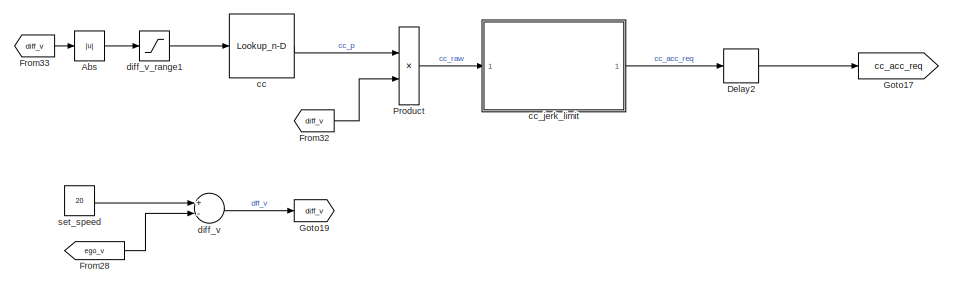
[diagram: root canvas - part 1/4, top right region]
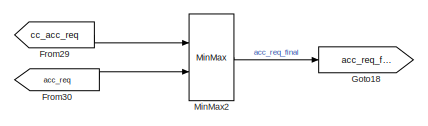
[diagram: root canvas - part 2/4, top right region]
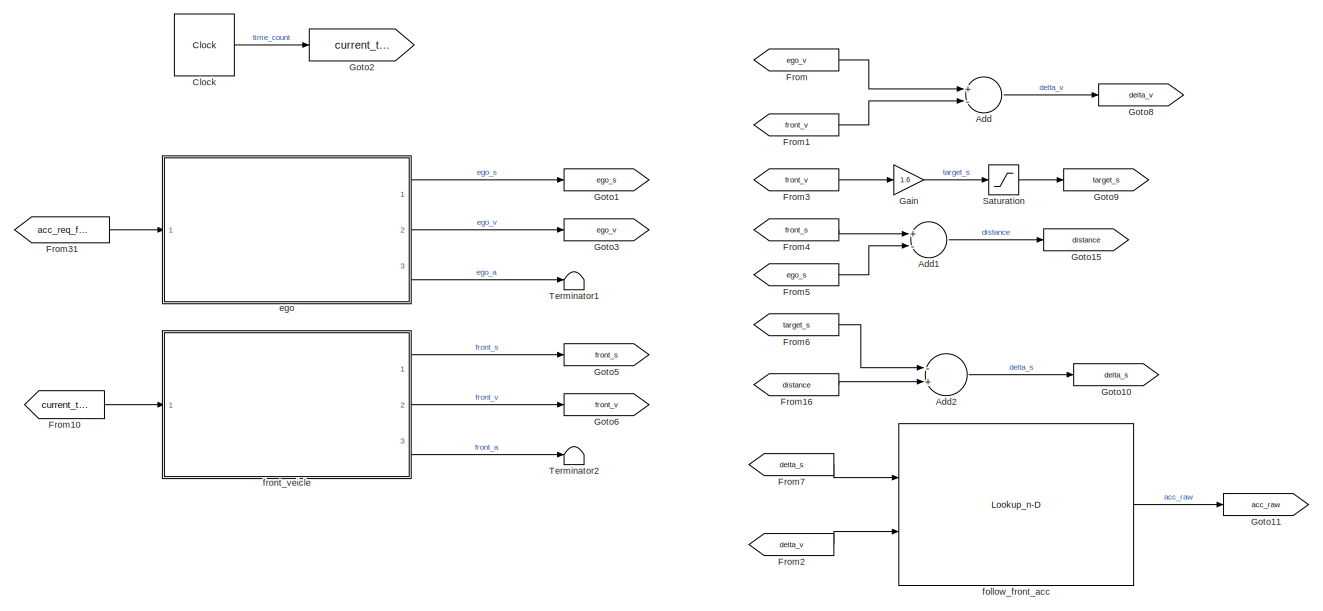
[diagram: root canvas - part 3/4, central region]
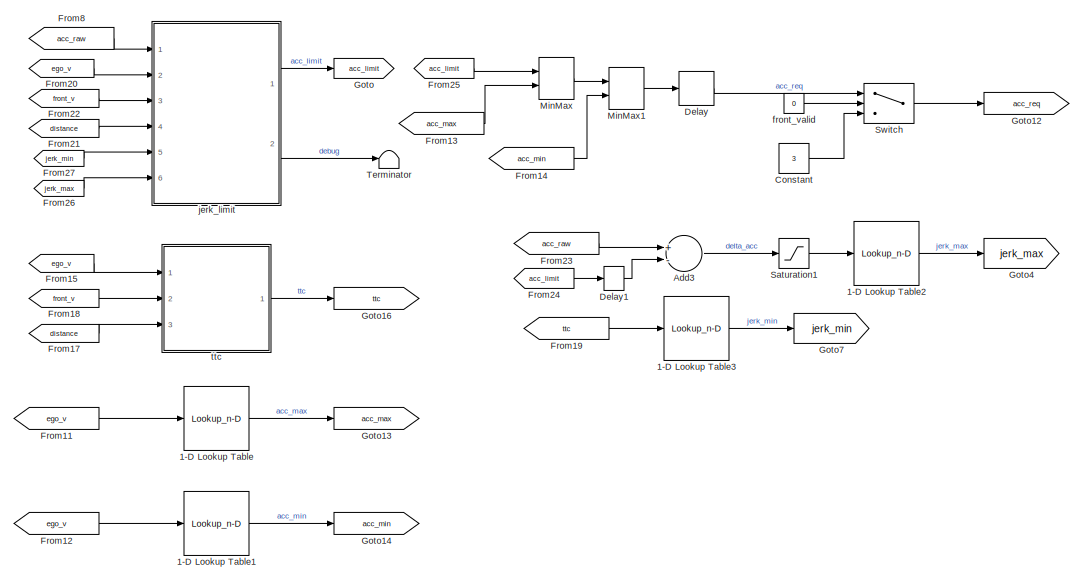
[diagram: root canvas - part 4/4, bottom center region]
MODEL slx_3a4f78efe61c
KIND model
CONFIG AbsTol = auto
CONFIG EnableMultiTasking = off
CONFIG FixedStep = 0.05
CONFIG MaxStep = auto
CONFIG MinStep = auto
CONFIG RelTol = 1e-3
CONFIG SampleTimeConstraint = Unconstrained
CONFIG Solver = FixedStepAuto
CONFIG SolverName = FixedStepAuto
CONFIG StartTime = 0.0
CONFIG StopTime = 15
BLOCK [Lookup_n-D] 1-D Lookup Table
  BreakpointsForDimension1 = Ego_V_arr
  InternalRulePriority = Speed
  NumberOfTableDimensions = 1
  Ports = [1, 1]
  RndMeth = Simplest
  Table = Ego_Acc_arr
BLOCK [Lookup_n-D] 1-D Lookup Table1
  BreakpointsForDimension1 = Ego_V_arr
  InternalRulePriority = Speed
  NumberOfTableDimensions = 1
  Ports = [1, 1]
  RndMeth = Simplest
  Table = Ego_dece_arr
BLOCK [Lookup_n-D] 1-D Lookup Table2
  BreakpointsForDimension1 = Delta_Acc
  InternalRulePriority = Speed
  NumberOfTableDimensions = 1
  Ports = [1, 1]
  RndMeth = Simplest
  Table = Pos_Jerk
BLOCK [Lookup_n-D] 1-D Lookup Table3
  BreakpointsForDimension1 = TTC_Arr
  InternalRulePriority = Speed
  NumberOfTableDimensions = 1
  Ports = [1, 1]
  RndMeth = Simplest
  Table = Neg_Jerk
BLOCK [Abs] Abs
  SaturateOnIntegerOverflow = off
BLOCK [Sum] Add
  InputSameDT = off
  Inputs = +-
  OutDataTypeStr = Inherit: Inherit via internal rule
  Ports = [2, 1]
  SaturateOnIntegerOverflow = off
BLOCK [Sum] Add1
  InputSameDT = off
  Inputs = +-
  OutDataTypeStr = Inherit: Inherit via internal rule
  Ports = [2, 1]
  SaturateOnIntegerOverflow = off
BLOCK [Sum] Add2
  InputSameDT = off
  Inputs = -+
  OutDataTypeStr = Inherit: Inherit via internal rule
  Ports = [2, 1]
  SaturateOnIntegerOverflow = off
BLOCK [Sum] Add3
  InputSameDT = off
  Inputs = +-
  OutDataTypeStr = Inherit: Inherit via internal rule
  Ports = [2, 1]
  SaturateOnIntegerOverflow = off
BLOCK [Clock] Clock
  DisplayTime = on
BLOCK [Constant] Constant
  Value = 3
BLOCK [Delay] Delay
  DelayLength = 1
  InitialCondition = 0
  InputPortMap = u0
  Ports = [1, 1]
BLOCK [Delay] Delay1
  DelayLength = 1
  InitialCondition = 0
  InputPortMap = u0
  Ports = [1, 1]
BLOCK [Delay] Delay2
  DelayLength = 1
  InitialCondition = 0
  InputPortMap = u0
  Ports = [1, 1]
BLOCK [From] From
  GotoTag = ego_v
BLOCK [From] From1
  GotoTag = front_v
BLOCK [From] From10
  GotoTag = current_time
BLOCK [From] From11
  GotoTag = ego_v
BLOCK [From] From12
  GotoTag = ego_v
BLOCK [From] From13
  GotoTag = acc_max
BLOCK [From] From14
  GotoTag = acc_min
BLOCK [From] From15
  GotoTag = ego_v
BLOCK [From] From16
  GotoTag = distance
BLOCK [From] From17
  GotoTag = distance
BLOCK [From] From18
  GotoTag = front_v
BLOCK [From] From19
  GotoTag = ttc
BLOCK [From] From2
  GotoTag = delta_v
BLOCK [From] From20
  GotoTag = ego_v
BLOCK [From] From21
  GotoTag = distance
BLOCK [From] From22
  GotoTag = front_v
BLOCK [From] From23
  GotoTag = acc_raw
BLOCK [From] From24
  GotoTag = acc_limit
BLOCK [From] From25
  GotoTag = acc_limit
BLOCK [From] From26
  GotoTag = jerk_max
BLOCK [From] From27
  GotoTag = jerk_min
BLOCK [From] From28
  GotoTag = ego_v
BLOCK [From] From29
  GotoTag = cc_acc_req
BLOCK [From] From3
  GotoTag = front_v
BLOCK [From] From30
  GotoTag = acc_req
BLOCK [From] From31
  GotoTag = acc_req_final
BLOCK [From] From32
  GotoTag = diff_v
BLOCK [From] From33
  GotoTag = diff_v
BLOCK [From] From4
  GotoTag = front_s
BLOCK [From] From5
  GotoTag = ego_s
BLOCK [From] From6
  GotoTag = target_s
BLOCK [From] From7
  GotoTag = delta_s
BLOCK [From] From8
  GotoTag = acc_raw
BLOCK [Gain] Gain
  Gain = 1.6
  OutDataTypeStr = Inherit: Inherit via internal rule
  ParamDataTypeStr = Inherit: Inherit via internal rule
  SaturateOnIntegerOverflow = off
BLOCK [Goto] Goto
  GotoTag = acc_limit
BLOCK [Goto] Goto1
  GotoTag = ego_s
BLOCK [Goto] Goto10
  GotoTag = delta_s
BLOCK [Goto] Goto11
  GotoTag = acc_raw
BLOCK [Goto] Goto12
  GotoTag = acc_req
BLOCK [Goto] Goto13
  GotoTag = acc_max
BLOCK [Goto] Goto14
  GotoTag = acc_min
BLOCK [Goto] Goto15
  GotoTag = distance
BLOCK [Goto] Goto16
  GotoTag = ttc
BLOCK [Goto] Goto17
  GotoTag = cc_acc_req
BLOCK [Goto] Goto18
  GotoTag = acc_req_final
BLOCK [Goto] Goto19
  GotoTag = diff_v
BLOCK [Goto] Goto2
  GotoTag = current_time
BLOCK [Goto] Goto3
  GotoTag = ego_v
BLOCK [Goto] Goto4
  GotoTag = jerk_max
BLOCK [Goto] Goto5
  GotoTag = front_s
BLOCK [Goto] Goto6
  GotoTag = front_v
BLOCK [Goto] Goto7
  GotoTag = jerk_min
BLOCK [Goto] Goto8
  GotoTag = delta_v
BLOCK [Goto] Goto9
  GotoTag = target_s
BLOCK [MinMax] MinMax
  InputSameDT = off
  Inputs = 2
  Ports = [2, 1]
  SaturateOnIntegerOverflow = off
BLOCK [MinMax] MinMax1
  Function = max
  InputSameDT = off
  Inputs = 2
  Ports = [2, 1]
  SaturateOnIntegerOverflow = off
BLOCK [MinMax] MinMax2
  InputSameDT = off
  Inputs = 2
  Ports = [2, 1]
  SaturateOnIntegerOverflow = off
BLOCK [Product] Product
  InputSameDT = off
  OutDataTypeStr = Inherit: Inherit via internal rule
  Ports = [2, 1]
  RndMeth = Floor
  SaturateOnIntegerOverflow = off
BLOCK [Saturate] Saturation
  InputPortMap = u0
  LowerLimit = 3
  Ports = [1, 1]
  UpperLimit = 150
BLOCK [Saturate] Saturation1
  InputPortMap = u0
  LowerLimit = 0
  Ports = [1, 1]
  UpperLimit = 5
BLOCK [Switch] Switch
  Criteria = u2 > Threshold
  InputSameDT = off
  SaturateOnIntegerOverflow = off
BLOCK [Terminator] Terminator
BLOCK [Terminator] Terminator1
BLOCK [Terminator] Terminator2
BLOCK [Lookup_n-D] cc
  BreakpointsForDimension1 = CC_Delta_V_Pos
  IndexSearchMethod = Linear search
  InternalRulePriority = Speed
  NumberOfTableDimensions = 1
  Ports = [1, 1]
  RndMeth = Simplest
  Table = CC_P_Arr_Pos
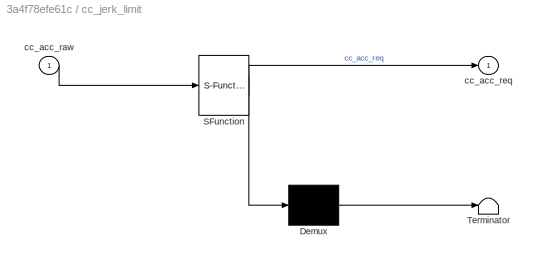
BLOCK [SubSystem] cc_jerk_limit
  ErrorFcn = Stateflow.Translate.translate
  PermitHierarchicalResolution = ExplicitOnly
  Ports = [1, 1]
  RequestExecContextInheritance = off
  SFBlockType = MATLAB Function
  TreatAsAtomicUnit = on
  Variant = off
BLOCK [Demux] cc_jerk_limit/ Demux 
  Outputs = 1
  Ports = [1, 1]
BLOCK [S-Function] cc_jerk_limit/ SFunction 
  EnableBusSupport = on
  FunctionName = sf_sfun
  PortCounts = [1 2]
  Ports = [1, 2]
  SFcnIsStateOwnerBlock = off
  SFunctionDeploymentMode = off
  Tag = Stateflow S-Function simulation 5
BLOCK [Terminator] cc_jerk_limit/ Terminator 
BLOCK [Inport] cc_jerk_limit/cc_acc_raw
  IconDisplay = Port number
BLOCK [Outport] cc_jerk_limit/cc_acc_req
  IconDisplay = Port number
BLOCK [Sum] diff_v
  InputSameDT = off
  Inputs = +-
  OutDataTypeStr = Inherit: Inherit via internal rule
  Ports = [2, 1]
  SaturateOnIntegerOverflow = off
BLOCK [Saturate] diff_v_range1
  InputPortMap = u0
  LowerLimit = 0
  Ports = [1, 1]
  UpperLimit = 30
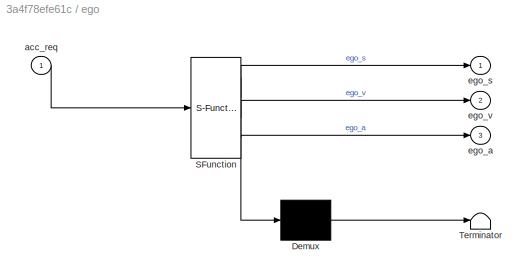
BLOCK [SubSystem] ego
  ErrorFcn = Stateflow.Translate.translate
  PermitHierarchicalResolution = ExplicitOnly
  Ports = [1, 3]
  RequestExecContextInheritance = off
  SFBlockType = MATLAB Function
  TreatAsAtomicUnit = on
  Variant = off
BLOCK [Demux] ego/ Demux 
  Outputs = 1
  Ports = [1, 1]
BLOCK [S-Function] ego/ SFunction 
  EnableBusSupport = on
  FunctionName = sf_sfun
  PortCounts = [1 4]
  Ports = [1, 4]
  SFcnIsStateOwnerBlock = off
  SFunctionDeploymentMode = off
  Tag = Stateflow S-Function simulation 2
BLOCK [Terminator] ego/ Terminator 
BLOCK [Inport] ego/acc_req
  IconDisplay = Port number
BLOCK [Outport] ego/ego_a
  IconDisplay = Port number
  Port = 3
BLOCK [Outport] ego/ego_s
  IconDisplay = Port number
BLOCK [Outport] ego/ego_v
  IconDisplay = Port number
  Port = 2
BLOCK [Lookup_n-D] follow_front_acc 
  BreakpointsForDimension1 = DeltaSArr
  BreakpointsForDimension2 = DeltaVArr
  InternalRulePriority = Speed
  Ports = [2, 1]
  RndMeth = Simplest
  Table = AccReqTable
BLOCK [Constant] front_valid
  Value = 0
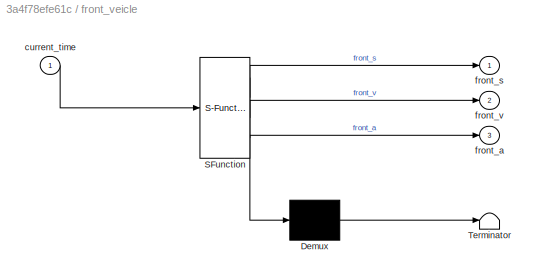
BLOCK [SubSystem] front_veicle
  ErrorFcn = Stateflow.Translate.translate
  PermitHierarchicalResolution = ExplicitOnly
  Ports = [1, 3]
  RequestExecContextInheritance = off
  SFBlockType = MATLAB Function
  TreatAsAtomicUnit = on
  Variant = off
BLOCK [Demux] front_veicle/ Demux 
  Outputs = 1
  Ports = [1, 1]
BLOCK [S-Function] front_veicle/ SFunction 
  EnableBusSupport = on
  FunctionName = sf_sfun
  PortCounts = [1 4]
  Ports = [1, 4]
  SFcnIsStateOwnerBlock = off
  SFunctionDeploymentMode = off
  Tag = Stateflow S-Function simulation 1
BLOCK [Terminator] front_veicle/ Terminator 
BLOCK [Inport] front_veicle/current_time
  IconDisplay = Port number
BLOCK [Outport] front_veicle/front_a
  IconDisplay = Port number
  Port = 3
BLOCK [Outport] front_veicle/front_s
  IconDisplay = Port number
BLOCK [Outport] front_veicle/front_v
  IconDisplay = Port number
  Port = 2
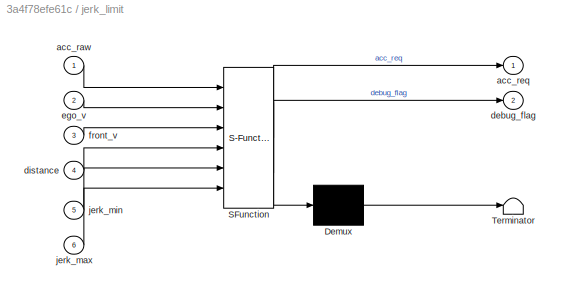
BLOCK [SubSystem] jerk_limit
  ErrorFcn = Stateflow.Translate.translate
  PermitHierarchicalResolution = ExplicitOnly
  Ports = [6, 2]
  RequestExecContextInheritance = off
  SFBlockType = MATLAB Function
  TreatAsAtomicUnit = on
  Variant = off
BLOCK [Demux] jerk_limit/ Demux 
  Outputs = 1
  Ports = [1, 1]
BLOCK [S-Function] jerk_limit/ SFunction 
  EnableBusSupport = on
  FunctionName = sf_sfun
  PortCounts = [6 3]
  Ports = [6, 3]
  SFcnIsStateOwnerBlock = off
  SFunctionDeploymentMode = off
  Tag = Stateflow S-Function simulation 3
BLOCK [Terminator] jerk_limit/ Terminator 
BLOCK [Inport] jerk_limit/acc_raw
  IconDisplay = Port number
BLOCK [Outport] jerk_limit/acc_req
  IconDisplay = Port number
BLOCK [Outport] jerk_limit/debug_flag
  IconDisplay = Port number
  Port = 2
BLOCK [Inport] jerk_limit/distance
  IconDisplay = Port number
  Port = 4
BLOCK [Inport] jerk_limit/ego_v
  IconDisplay = Port number
  Port = 2
BLOCK [Inport] jerk_limit/front_v
  IconDisplay = Port number
  Port = 3
BLOCK [Inport] jerk_limit/jerk_max
  IconDisplay = Port number
  Port = 6
BLOCK [Inport] jerk_limit/jerk_min
  IconDisplay = Port number
  Port = 5
BLOCK [Constant] set_speed
  Value = 20
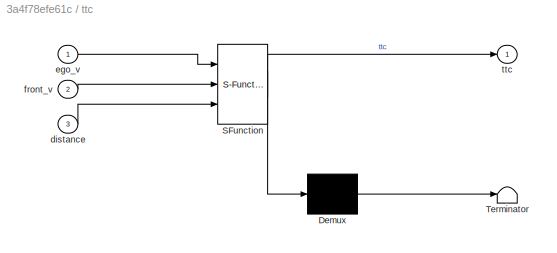
BLOCK [SubSystem] ttc
  ErrorFcn = Stateflow.Translate.translate
  PermitHierarchicalResolution = ExplicitOnly
  Ports = [3, 1]
  RequestExecContextInheritance = off
  SFBlockType = MATLAB Function
  TreatAsAtomicUnit = on
  Variant = off
BLOCK [Demux] ttc/ Demux 
  Outputs = 1
  Ports = [1, 1]
BLOCK [S-Function] ttc/ SFunction 
  EnableBusSupport = on
  FunctionName = sf_sfun
  PortCounts = [3 2]
  Ports = [3, 2]
  SFcnIsStateOwnerBlock = off
  SFunctionDeploymentMode = off
  Tag = Stateflow S-Function simulation 4
BLOCK [Terminator] ttc/ Terminator 
BLOCK [Inport] ttc/distance
  IconDisplay = Port number
  Port = 3
BLOCK [Inport] ttc/ego_v
  IconDisplay = Port number
BLOCK [Inport] ttc/front_v
  IconDisplay = Port number
  Port = 2
BLOCK [Outport] ttc/ttc
  IconDisplay = Port number
LINE 1-D Lookup Table1:1 -> Goto14:1
LINE 1-D Lookup Table2:1 -> Goto4:1
LINE 1-D Lookup Table3:1 -> Goto7:1
LINE 1-D Lookup Table:1 -> Goto13:1
LINE Abs:1 -> diff_v_range1:1
LINE Add1:1 -> Goto15:1
LINE Add2:1 -> Goto10:1
LINE Add3:1 -> Saturation1:1
LINE Add:1 -> Goto8:1
LINE Clock:1 -> Goto2:1
LINE Constant:1 -> Switch:3
LINE Delay1:1 -> Add3:2
LINE Delay2:1 -> Goto17:1
LINE Delay:1 -> Switch:1
LINE From10:1 -> front_veicle:1
LINE From11:1 -> 1-D Lookup Table:1
LINE From12:1 -> 1-D Lookup Table1:1
LINE From13:1 -> MinMax:2
LINE From14:1 -> MinMax1:2
LINE From15:1 -> ttc:1
LINE From16:1 -> Add2:2
LINE From17:1 -> ttc:3
LINE From18:1 -> ttc:2
LINE From19:1 -> 1-D Lookup Table3:1
LINE From1:1 -> Add:2
LINE From20:1 -> jerk_limit:2
LINE From21:1 -> jerk_limit:4
LINE From22:1 -> jerk_limit:3
LINE From23:1 -> Add3:1
LINE From24:1 -> Delay1:1
LINE From25:1 -> MinMax:1
LINE From26:1 -> jerk_limit:6
LINE From27:1 -> jerk_limit:5
LINE From28:1 -> diff_v:2
LINE From29:1 -> MinMax2:1
LINE From2:1 -> follow_front_acc :2
LINE From30:1 -> MinMax2:2
LINE From31:1 -> ego:1
LINE From32:1 -> Product:2
LINE From33:1 -> Abs:1
LINE From3:1 -> Gain:1
LINE From4:1 -> Add1:1
LINE From5:1 -> Add1:2
LINE From6:1 -> Add2:1
LINE From7:1 -> follow_front_acc :1
LINE From8:1 -> jerk_limit:1
LINE From:1 -> Add:1
LINE Gain:1 -> Saturation:1
LINE MinMax1:1 -> Delay:1
LINE MinMax2:1 -> Goto18:1
LINE MinMax:1 -> MinMax1:1
LINE Product:1 -> cc_jerk_limit:1
LINE Saturation1:1 -> 1-D Lookup Table2:1
LINE Saturation:1 -> Goto9:1
LINE Switch:1 -> Goto12:1
LINE cc:1 -> Product:1
LINE cc_jerk_limit:1 -> Delay2:1
LINE diff_v:1 -> Goto19:1
LINE diff_v_range1:1 -> cc:1
LINE ego:1 -> Goto1:1
LINE ego:2 -> Goto3:1
LINE ego:3 -> Terminator1:1
LINE follow_front_acc :1 -> Goto11:1
LINE front_valid:1 -> Switch:2
LINE front_veicle:1 -> Goto5:1
LINE front_veicle:2 -> Goto6:1
LINE front_veicle:3 -> Terminator2:1
LINE jerk_limit:1 -> Goto:1
LINE jerk_limit:2 -> Terminator:1
LINE set_speed:1 -> diff_v:1
LINE ttc:1 -> Goto16:1
CHART front_veicle states=1 transitions=1
  STATE_LABEL 'eML_blk_kernel()'
  STATE_LABEL 'SCRIPT:\nfunction [front_s, front_v, front_a]= fcn(current_time)\npersistent pre_front_s\npersistent pre_front_v\npersistent pre_front_a\n%自车初始化\nif isempty(pre_front_s)\n    pre_front_s = 100;\nend\nif isempty(pre_front_v)\n    pre_front_v = 0;\nend\nif isempty(pre_front_a)\n    pre_front_a = 0;\nend\ndt = 0.05;\n%% 前车匀速模型\nfront_a = pre_front_a;\nfront_v = pre_front_v + front_a * dt;\nfront_s = pre_front_s + pre_f...<+121ch>'
CHART ego states=1 transitions=1
  STATE_LABEL 'eML_blk_kernel()'
  STATE_LABEL 'SCRIPT:\nfunction [ego_s, ego_v, ego_a]= fcn(acc_req)\npersistent pre_ego_s\npersistent pre_ego_v\npersistent pre_ego_a\n%自车初始化\nif isempty(pre_ego_s)\n    pre_ego_s = 0;\nend\nif isempty(pre_ego_v)\n    pre_ego_v = 10;\nend\nif isempty(pre_ego_a)\n    pre_ego_a = 0;\nend\ndt = 0.05;\n%加速度响应\nego_a = pre_ego_a * 0.9 + acc_req * 0.1;\nego_v = pre_ego_v + ego_a * dt;\nif ego_v < 0\n    ego_v = 0;\nend\nego_s = pre_ego_s ...<+112ch>'
CHART jerk_limit states=1 transitions=1
  STATE_LABEL 'eML_blk_kernel()'
  STATE_LABEL 'SCRIPT:\nfunction [acc_req, debug_flag] = fcn(acc_raw, ego_v, front_v, distance, jerk_min, jerk_max)\npersistent pre_acc_req\nif isempty(pre_acc_req)\n    pre_acc_req = 0;\nend\ndebug_flag = 0;\ndt = 0.05;\nneg_jerk = jerk_min;\nif ((front_v - ego_v) > 3) && (distance < 1.0 * ego_v)\n    if distance < 0.5 * ego_v\n        neg_jerk = -4;\n    elseif distance < 0.8 * ego_v\n        neg_jerk = -3;\n    else\n      ...<+386ch>'
CHART ttc states=1 transitions=1
  STATE_LABEL 'eML_blk_kernel()'
  STATE_LABEL 'SCRIPT:\nfunction ttc = fcn(ego_v, front_v, distance)\nttc = 100;\nif (ego_v > front_v && distance > 0)\nttc = distance/(ego_v - front_v);\nttc = min(ttc, 100);\nend'
CHART cc_jerk_limit states=1 transitions=1
  STATE_LABEL 'eML_blk_kernel()'
  STATE_LABEL 'SCRIPT:\nfunction cc_acc_req = fcn(cc_acc_raw)\npersistent pre_acc_req\nif isempty(pre_acc_req)\n    pre_acc_req = 0;\nend\ndt = 0.05;\npos_jerk = 1.0;\nneg_jerk = -1.2;\nif cc_acc_raw > pre_acc_req + pos_jerk * dt\n    cc_acc_req = pre_acc_req + pos_jerk * dt;\nelseif cc_acc_raw < pre_acc_req + neg_jerk * dt\n    cc_acc_req = pre_acc_req + neg_jerk * dt;\nelse\n    cc_acc_req = cc_acc_raw;\nend\npre_acc_req = cc...<+17ch>'
